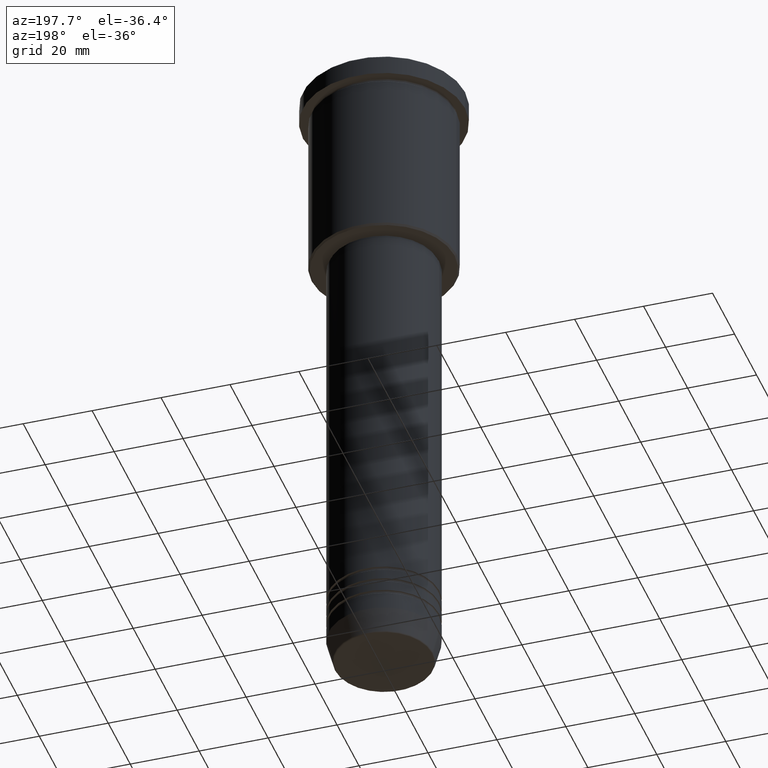
[diagram: clean part render]
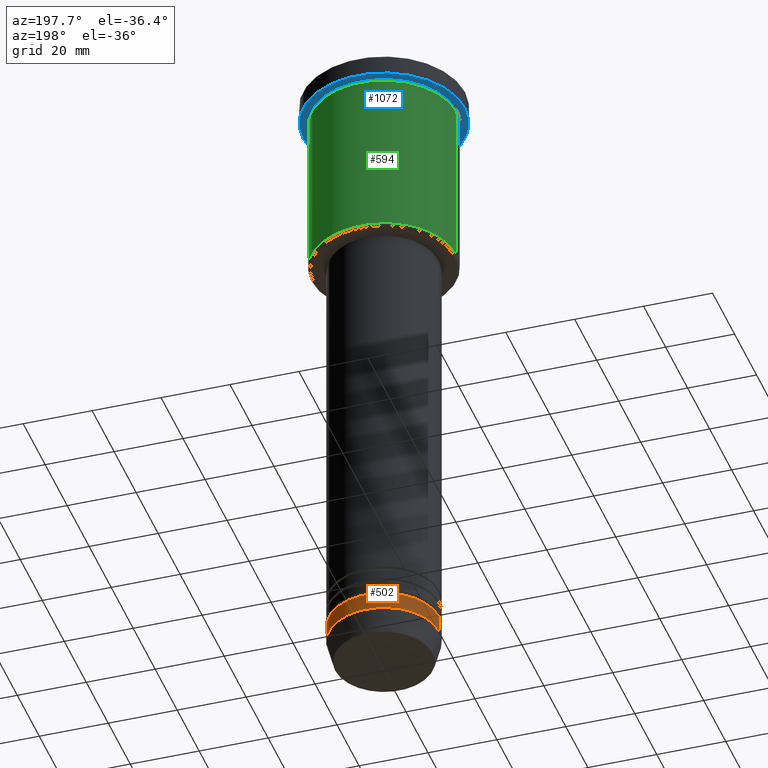
[diagram: same view with three faces highlighted in distinct colors, each labeled with its STEP entity id]
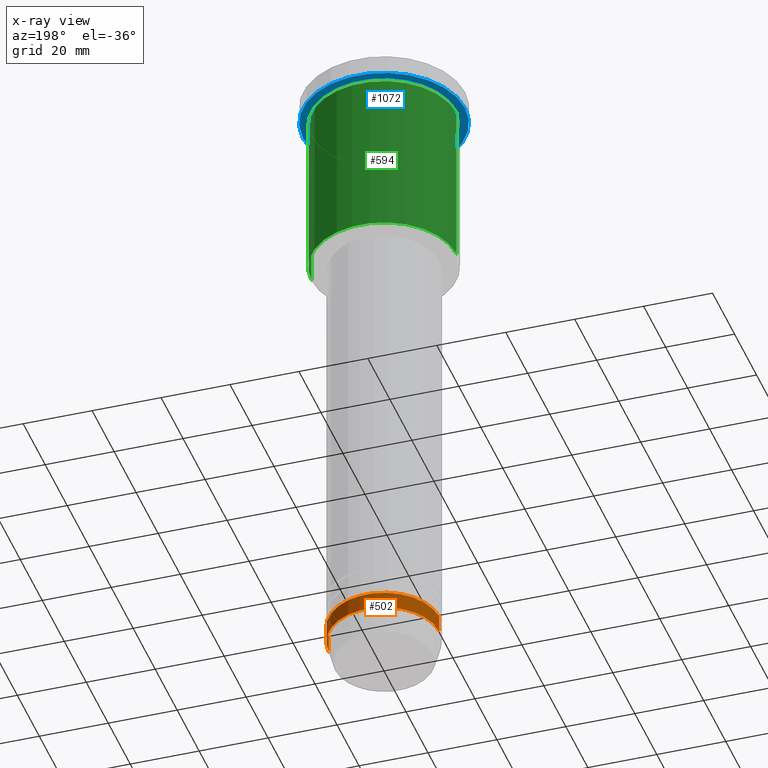
[diagram: x-ray of the same camera — body ghosted, the three highlighted faces saturated]
A machine part, auxiliary view with three faces highlighted in distinct colors.
The next image is the same camera in x-ray (body ghosted, the three faces saturated) — at least one of them is partly hidden behind the body in this view.
Their STEP definitions:

[orange] entity #502 — the highlighted cylindrical surface (partial cylindrical patch) has radius 16 mm, axis along (-0, -0, 1).
#3 = EDGE_LOOP ( 'NONE', ( #93, #821, #436, #862 ) ) ;
#7 = EDGE_CURVE ( 'NONE', #158, #676, #941, .T. ) ;
#20 = CARTESIAN_POINT ( 'NONE',  ( 0.000000000000000000, 0.000000000000000000, -179.0000000000000284 ) ) ;
#33 = CARTESIAN_POINT ( 'NONE',  ( 0.000000000000000000, 0.000000000000000000, 0.000000000000000000 ) ) ;
#86 = EDGE_CURVE ( 'NONE', #1153, #888, #376, .T. ) ;
#92 = DIRECTION ( 'NONE',  ( -0.000000000000000000, -0.000000000000000000, 1.000000000000000000 ) ) ;
#93 = ORIENTED_EDGE ( 'NONE', *, *, #699, .T. ) ;
#150 = DIRECTION ( 'NONE',  ( -0.000000000000000000, -0.000000000000000000, 1.000000000000000000 ) ) ;
#158 = VERTEX_POINT ( 'NONE', #805 ) ;
#248 = VECTOR ( 'NONE', #92, 1000.000000000000000 ) ;
#250 = AXIS2_PLACEMENT_3D ( 'NONE', #20, #1114, #392 ) ;
#376 = LINE ( 'NONE', #724, #248 ) ;
#392 = DIRECTION ( 'NONE',  ( 1.000000000000000000, 0.000000000000000000, 0.000000000000000000 ) ) ;
#436 = ORIENTED_EDGE ( 'NONE', *, *, #926, .F. ) ;
#502 = ADVANCED_FACE ( 'NONE', ( #854 ), #674, .T. ) ;
#580 = VECTOR ( 'NONE', #856, 1000.000000000000000 ) ;
#674 = CYLINDRICAL_SURFACE ( 'NONE', #761, 16.00000000000000000 ) ;
#676 = VERTEX_POINT ( 'NONE', #943 ) ;
#699 = EDGE_CURVE ( 'NONE', #1153, #158, #874, .T. ) ;
#724 = CARTESIAN_POINT ( 'NONE',  ( 16.00000000000000000, 0.000000000000000000, 0.000000000000000000 ) ) ;
#761 = AXIS2_PLACEMENT_3D ( 'NONE', #33, #1043, #1124 ) ;
#786 = CARTESIAN_POINT ( 'NONE',  ( 16.00000000000000000, 0.000000000000000000, -184.0000000000000000 ) ) ;
#805 = CARTESIAN_POINT ( 'NONE',  ( -16.00000000000000000, 1.959434878635765131E-15, -184.0000000000000000 ) ) ;
#821 = ORIENTED_EDGE ( 'NONE', *, *, #7, .T. ) ;
#822 = AXIS2_PLACEMENT_3D ( 'NONE', #869, #150, #883 ) ;
#854 = FACE_OUTER_BOUND ( 'NONE', #3, .T. ) ;
#856 = DIRECTION ( 'NONE',  ( -0.000000000000000000, -0.000000000000000000, 1.000000000000000000 ) ) ;
#862 = ORIENTED_EDGE ( 'NONE', *, *, #86, .F. ) ;
#869 = CARTESIAN_POINT ( 'NONE',  ( 0.000000000000000000, 0.000000000000000000, -184.0000000000000000 ) ) ;
#873 = CARTESIAN_POINT ( 'NONE',  ( -16.00000000000000000, 1.959434878635765131E-15, 0.000000000000000000 ) ) ;
#874 = CIRCLE ( 'NONE', #822, 16.00000000000000000 ) ;
#883 = DIRECTION ( 'NONE',  ( 1.000000000000000000, 0.000000000000000000, 0.000000000000000000 ) ) ;
#888 = VERTEX_POINT ( 'NONE', #889 ) ;
#889 = CARTESIAN_POINT ( 'NONE',  ( 16.00000000000000000, 0.000000000000000000, -179.0000000000000284 ) ) ;
#926 = EDGE_CURVE ( 'NONE', #888, #676, #1118, .T. ) ;
#941 = LINE ( 'NONE', #873, #580 ) ;
#943 = CARTESIAN_POINT ( 'NONE',  ( -16.00000000000000000, 1.959434878635765131E-15, -179.0000000000000284 ) ) ;
#1043 = DIRECTION ( 'NONE',  ( -0.000000000000000000, -0.000000000000000000, 1.000000000000000000 ) ) ;
#1114 = DIRECTION ( 'NONE',  ( -0.000000000000000000, -0.000000000000000000, 1.000000000000000000 ) ) ;
#1118 = CIRCLE ( 'NONE', #250, 16.00000000000000000 ) ;
#1124 = DIRECTION ( 'NONE',  ( 1.000000000000000000, 0.000000000000000000, 0.000000000000000000 ) ) ;
#1153 = VERTEX_POINT ( 'NONE', #786 ) ;

[blue] entity #1072 — the highlighted planar face has unit normal (0, 0, -1).
#34 = CIRCLE ( 'NONE', #442, 23.50000000000000000 ) ;
#45 = CARTESIAN_POINT ( 'NONE',  ( -23.50000000000000000, 2.877919977996280320E-15, -5.999999999999993783 ) ) ;
#46 = EDGE_CURVE ( 'NONE', #1079, #127, #551, .T. ) ;
#63 = DIRECTION ( 'NONE',  ( 1.000000000000000000, 0.000000000000000000, 0.000000000000000000 ) ) ;
#87 = DIRECTION ( 'NONE',  ( -0.000000000000000000, -0.000000000000000000, 1.000000000000000000 ) ) ;
#108 = CARTESIAN_POINT ( 'NONE',  ( 0.000000000000000000, 23.50000000000000000, -5.999999999999993783 ) ) ;
#127 = VERTEX_POINT ( 'NONE', #444 ) ;
#129 = AXIS2_PLACEMENT_3D ( 'NONE', #741, #283, #553 ) ;
#166 = DIRECTION ( 'NONE',  ( -1.000000000000000000, 0.000000000000000000, 0.000000000000000000 ) ) ;
#186 = FACE_BOUND ( 'NONE', #549, .T. ) ;
#201 = AXIS2_PLACEMENT_3D ( 'NONE', #108, #1106, #910 ) ;
#212 = EDGE_CURVE ( 'NONE', #660, #370, #1157, .T. ) ;
#277 = CARTESIAN_POINT ( 'NONE',  ( -21.00000000000000000, 0.000000000000000000, -5.999999999999992895 ) ) ;
#283 = DIRECTION ( 'NONE',  ( -0.000000000000000000, -0.000000000000000000, 1.000000000000000000 ) ) ;
#343 = CARTESIAN_POINT ( 'NONE',  ( 0.000000000000000000, 0.000000000000000000, -5.999999999999993783 ) ) ;
#358 = ORIENTED_EDGE ( 'NONE', *, *, #46, .T. ) ;
#370 = VERTEX_POINT ( 'NONE', #45 ) ;
#401 = AXIS2_PLACEMENT_3D ( 'NONE', #343, #792, #1181 ) ;
#438 = AXIS2_PLACEMENT_3D ( 'NONE', #811, #87, #166 ) ;
#442 = AXIS2_PLACEMENT_3D ( 'NONE', #982, #715, #63 ) ;
#444 = CARTESIAN_POINT ( 'NONE',  ( 21.00000000000000000, 2.571758278209441661E-15, -5.999999999999992895 ) ) ;
#549 = EDGE_LOOP ( 'NONE', ( #358, #773 ) ) ;
#551 = CIRCLE ( 'NONE', #438, 21.00000000000000000 ) ;
#553 = DIRECTION ( 'NONE',  ( 1.000000000000000000, 0.000000000000000000, 0.000000000000000000 ) ) ;
#588 = ORIENTED_EDGE ( 'NONE', *, *, #1033, .F. ) ;
#649 = FACE_OUTER_BOUND ( 'NONE', #1084, .T. ) ;
#660 = VERTEX_POINT ( 'NONE', #1037 ) ;
#715 = DIRECTION ( 'NONE',  ( -0.000000000000000000, -0.000000000000000000, 1.000000000000000000 ) ) ;
#741 = CARTESIAN_POINT ( 'NONE',  ( 0.000000000000000000, 0.000000000000000000, -5.999999999999993783 ) ) ;
#773 = ORIENTED_EDGE ( 'NONE', *, *, #852, .T. ) ;
#792 = DIRECTION ( 'NONE',  ( -0.000000000000000000, -0.000000000000000000, 1.000000000000000000 ) ) ;
#811 = CARTESIAN_POINT ( 'NONE',  ( 0.000000000000000000, 0.000000000000000000, -5.999999999999993783 ) ) ;
#852 = EDGE_CURVE ( 'NONE', #127, #1079, #951, .T. ) ;
#910 = DIRECTION ( 'NONE',  ( -1.000000000000000000, 0.000000000000000000, -0.000000000000000000 ) ) ;
#934 = ORIENTED_EDGE ( 'NONE', *, *, #212, .F. ) ;
#951 = CIRCLE ( 'NONE', #401, 21.00000000000000000 ) ;
#982 = CARTESIAN_POINT ( 'NONE',  ( 0.000000000000000000, 0.000000000000000000, -5.999999999999993783 ) ) ;
#988 = PLANE ( 'NONE',  #201 ) ;
#1033 = EDGE_CURVE ( 'NONE', #370, #660, #34, .T. ) ;
#1037 = CARTESIAN_POINT ( 'NONE',  ( 23.50000000000000000, 0.000000000000000000, -5.999999999999993783 ) ) ;
#1072 = ADVANCED_FACE ( 'NONE', ( #186, #649 ), #988, .T. ) ;
#1079 = VERTEX_POINT ( 'NONE', #277 ) ;
#1084 = EDGE_LOOP ( 'NONE', ( #934, #588 ) ) ;
#1106 = DIRECTION ( 'NONE',  ( 0.000000000000000000, 0.000000000000000000, -1.000000000000000000 ) ) ;
#1157 = CIRCLE ( 'NONE', #129, 23.50000000000000000 ) ;
#1181 = DIRECTION ( 'NONE',  ( -1.000000000000000000, 0.000000000000000000, 0.000000000000000000 ) ) ;

[green] entity #594 — the highlighted cylindrical surface (partial cylindrical patch) has radius 21 mm, axis along (-0, -0, 1).
#12 = LINE ( 'NONE', #843, #459 ) ;
#39 = CARTESIAN_POINT ( 'NONE',  ( -21.00000000000000000, 2.571758278209441661E-15, -6.999999999999993783 ) ) ;
#60 = CARTESIAN_POINT ( 'NONE',  ( -21.00000000000000000, 2.571758278209441661E-15, 0.000000000000000000 ) ) ;
#168 = CARTESIAN_POINT ( 'NONE',  ( 0.000000000000000000, 0.000000000000000000, -6.999999999999993783 ) ) ;
#170 = CYLINDRICAL_SURFACE ( 'NONE', #552, 21.00000000000000000 ) ;
#178 = EDGE_CURVE ( 'NONE', #758, #617, #399, .T. ) ;
#331 = EDGE_CURVE ( 'NONE', #758, #984, #12, .T. ) ;
#379 = ORIENTED_EDGE ( 'NONE', *, *, #892, .F. ) ;
#384 = DIRECTION ( 'NONE',  ( -0.000000000000000000, -0.000000000000000000, 1.000000000000000000 ) ) ;
#399 = CIRCLE ( 'NONE', #648, 21.00000000000000000 ) ;
#422 = CARTESIAN_POINT ( 'NONE',  ( 21.00000000000000000, 0.000000000000000000, -6.999999999999993783 ) ) ;
#426 = CARTESIAN_POINT ( 'NONE',  ( 0.000000000000000000, 0.000000000000000000, 0.000000000000000000 ) ) ;
#441 = DIRECTION ( 'NONE',  ( 1.000000000000000000, 0.000000000000000000, 0.000000000000000000 ) ) ;
#450 = DIRECTION ( 'NONE',  ( -1.000000000000000000, 0.000000000000000000, 0.000000000000000000 ) ) ;
#455 = VERTEX_POINT ( 'NONE', #39 ) ;
#459 = VECTOR ( 'NONE', #384, 1000.000000000000000 ) ;
#462 = CIRCLE ( 'NONE', #572, 21.00000000000000000 ) ;
#537 = CARTESIAN_POINT ( 'NONE',  ( -21.00000000000000000, 2.571758278209441661E-15, -55.49999999999998579 ) ) ;
#539 = CARTESIAN_POINT ( 'NONE',  ( 0.000000000000000000, 0.000000000000000000, -55.49999999999998579 ) ) ;
#552 = AXIS2_PLACEMENT_3D ( 'NONE', #426, #709, #441 ) ;
#562 = ORIENTED_EDGE ( 'NONE', *, *, #653, .T. ) ;
#572 = AXIS2_PLACEMENT_3D ( 'NONE', #168, #1162, #712 ) ;
#591 = ORIENTED_EDGE ( 'NONE', *, *, #178, .T. ) ;
#594 = ADVANCED_FACE ( 'NONE', ( #1168 ), #170, .T. ) ;
#617 = VERTEX_POINT ( 'NONE', #537 ) ;
#648 = AXIS2_PLACEMENT_3D ( 'NONE', #539, #903, #450 ) ;
#653 = EDGE_CURVE ( 'NONE', #617, #455, #809, .T. ) ;
#709 = DIRECTION ( 'NONE',  ( -0.000000000000000000, -0.000000000000000000, 1.000000000000000000 ) ) ;
#712 = DIRECTION ( 'NONE',  ( 1.000000000000000000, 0.000000000000000000, 0.000000000000000000 ) ) ;
#738 = EDGE_LOOP ( 'NONE', ( #591, #562, #379, #1006 ) ) ;
#758 = VERTEX_POINT ( 'NONE', #1061 ) ;
#809 = LINE ( 'NONE', #60, #917 ) ;
#843 = CARTESIAN_POINT ( 'NONE',  ( 21.00000000000000000, 0.000000000000000000, 0.000000000000000000 ) ) ;
#892 = EDGE_CURVE ( 'NONE', #984, #455, #462, .T. ) ;
#903 = DIRECTION ( 'NONE',  ( -0.000000000000000000, -0.000000000000000000, 1.000000000000000000 ) ) ;
#917 = VECTOR ( 'NONE', #963, 1000.000000000000000 ) ;
#963 = DIRECTION ( 'NONE',  ( -0.000000000000000000, -0.000000000000000000, 1.000000000000000000 ) ) ;
#984 = VERTEX_POINT ( 'NONE', #422 ) ;
#1006 = ORIENTED_EDGE ( 'NONE', *, *, #331, .F. ) ;
#1061 = CARTESIAN_POINT ( 'NONE',  ( 21.00000000000000000, 0.000000000000000000, -55.49999999999998579 ) ) ;
#1162 = DIRECTION ( 'NONE',  ( -0.000000000000000000, -0.000000000000000000, 1.000000000000000000 ) ) ;
#1168 = FACE_OUTER_BOUND ( 'NONE', #738, .T. ) ;